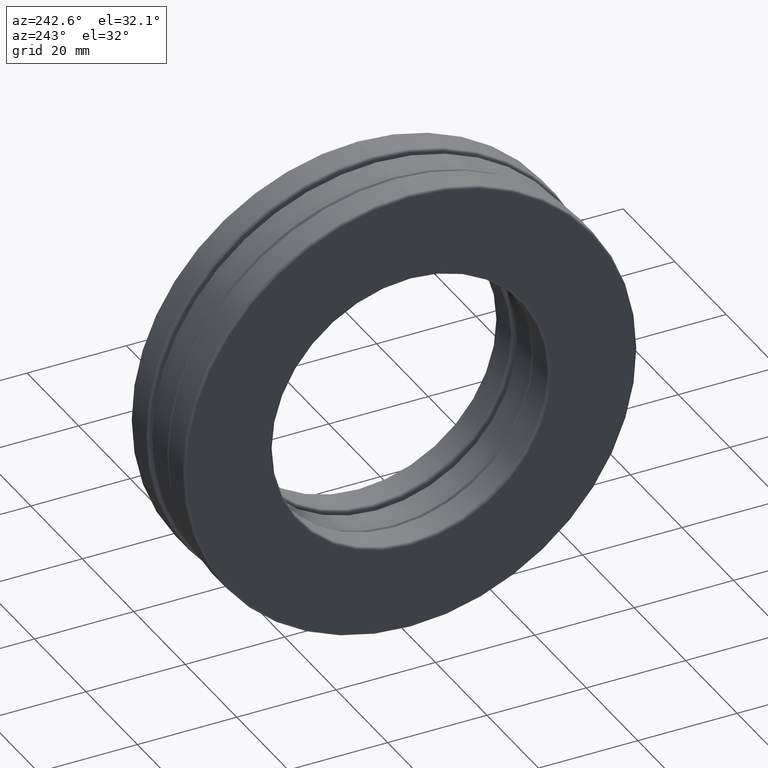
[diagram: clean part render]
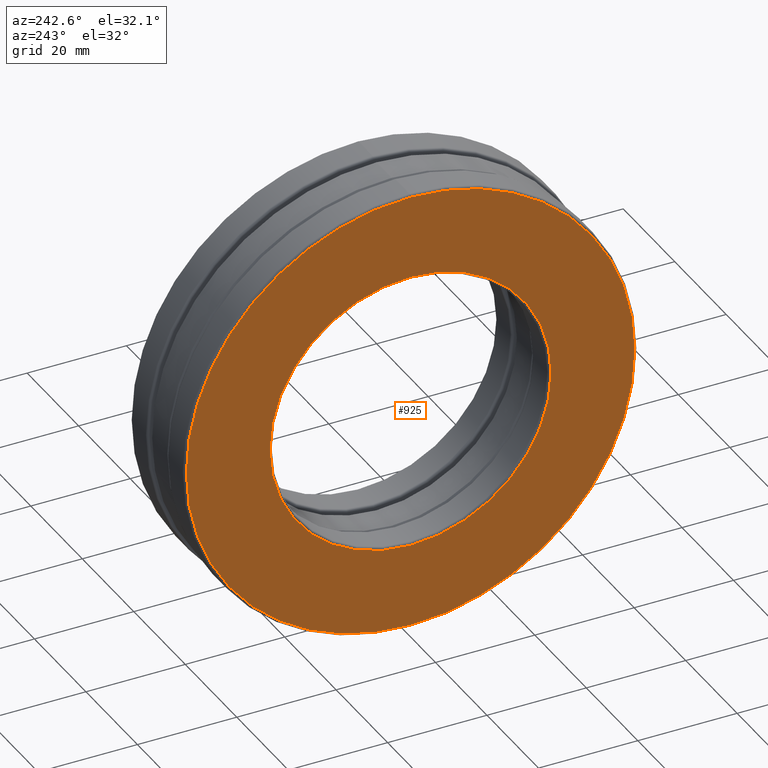
[diagram: same view with one face highlighted and labeled with its STEP entity id]
A machine part, auxiliary view. The second image highlights one B-rep face of the part: STEP entity #925.
In plain terms, the highlighted planar face has unit normal (1, 0, 0).
Its self-contained STEP definition (entity closure, byte-faithful):
#85 = DIRECTION ( 'NONE',  ( 1.000000000000000000, 0.0000000000000000000, 0.0000000000000000000 ) ) ;
#100 = CARTESIAN_POINT ( 'NONE',  ( -0.4059999999999998600, 0.0000000000000000000, 1.776875000000000400 ) ) ;
#141 = DIRECTION ( 'NONE',  ( -1.000000000000000000, -0.0000000000000000000, -0.0000000000000000000 ) ) ;
#177 = PLANE ( 'NONE',  #345 ) ;
#199 = ORIENTED_EDGE ( 'NONE', *, *, #407, .T. ) ;
#345 = AXIS2_PLACEMENT_3D ( 'NONE', #424, #85, #1309 ) ;
#407 = EDGE_CURVE ( 'NONE', #740, #740, #897, .T. ) ;
#424 = CARTESIAN_POINT ( 'NONE',  ( -0.4059999999999998600, 0.0000000000000000000, 0.0000000000000000000 ) ) ;
#494 = AXIS2_PLACEMENT_3D ( 'NONE', #1040, #141, #819 ) ;
#558 = ORIENTED_EDGE ( 'NONE', *, *, #815, .F. ) ;
#578 = EDGE_LOOP ( 'NONE', ( #558 ) ) ;
#712 = DIRECTION ( 'NONE',  ( -1.000000000000000000, -0.0000000000000000000, -0.0000000000000000000 ) ) ;
#740 = VERTEX_POINT ( 'NONE', #100 ) ;
#815 = EDGE_CURVE ( 'NONE', #943, #943, #1149, .T. ) ;
#819 = DIRECTION ( 'NONE',  ( 0.0000000000000000000, 0.0000000000000000000, 1.000000000000000000 ) ) ;
#860 = FACE_OUTER_BOUND ( 'NONE', #954, .T. ) ;
#872 = AXIS2_PLACEMENT_3D ( 'NONE', #1079, #712, #1410 ) ;
#897 = CIRCLE ( 'NONE', #494, 1.776875000000000400 ) ;
#925 = ADVANCED_FACE ( 'NONE', ( #1236, #860 ), #177, .F. ) ;
#943 = VERTEX_POINT ( 'NONE', #998 ) ;
#954 = EDGE_LOOP ( 'NONE', ( #199 ) ) ;
#998 = CARTESIAN_POINT ( 'NONE',  ( -0.4059999999999998600, 0.0000000000000000000, 1.113750000000000000 ) ) ;
#1040 = CARTESIAN_POINT ( 'NONE',  ( -0.4059999999999998600, 0.0000000000000000000, 0.0000000000000000000 ) ) ;
#1079 = CARTESIAN_POINT ( 'NONE',  ( -0.4059999999999998600, 0.0000000000000000000, 0.0000000000000000000 ) ) ;
#1149 = CIRCLE ( 'NONE', #872, 1.113750000000000000 ) ;
#1236 = FACE_BOUND ( 'NONE', #578, .T. ) ;
#1309 = DIRECTION ( 'NONE',  ( 0.0000000000000000000, 0.0000000000000000000, -1.000000000000000000 ) ) ;
#1410 = DIRECTION ( 'NONE',  ( 0.0000000000000000000, 0.0000000000000000000, 1.000000000000000000 ) ) ;